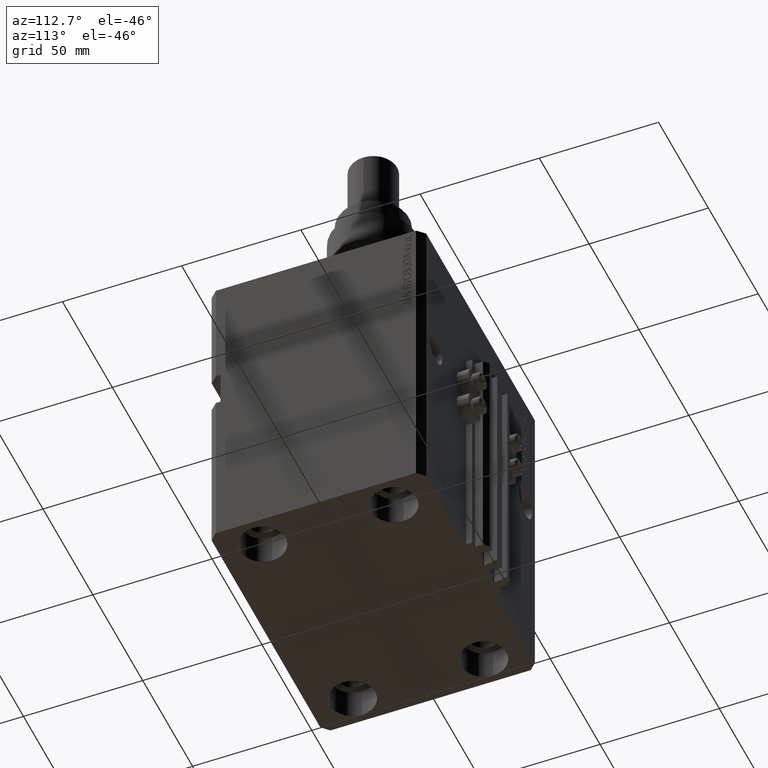
[diagram: clean part render]
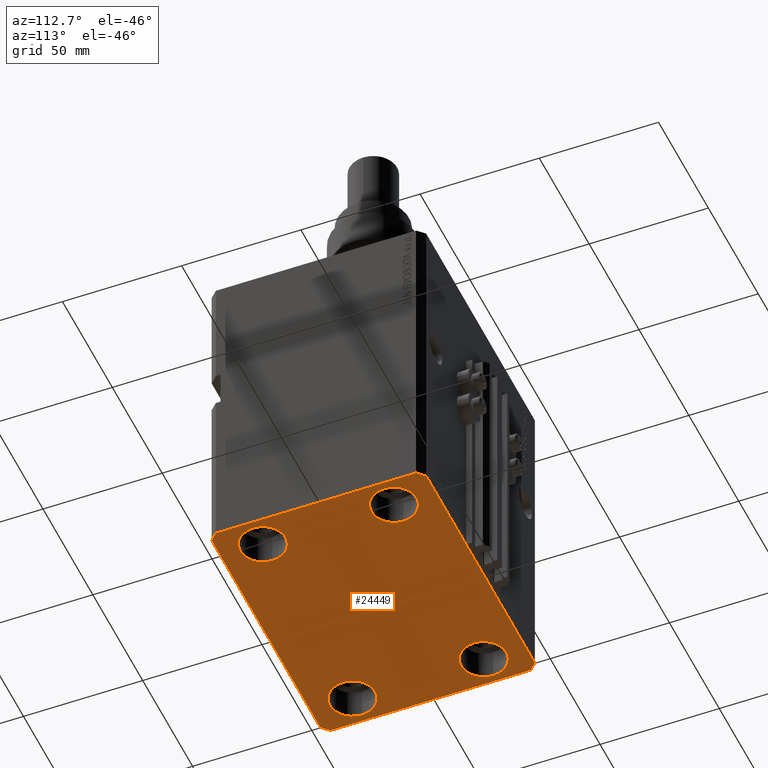
[diagram: same view with one face highlighted and labeled with its STEP entity id]
A machine part, auxiliary view. The second image highlights one B-rep face of the part: STEP entity #24449.
In plain terms, the highlighted planar face has unit normal (0, 0, 1).
Its self-contained STEP definition (entity closure, byte-faithful):
#442 = VECTOR ( 'NONE', #6666, 1000.000000000000000 ) ;
#510 = VERTEX_POINT ( 'NONE', #36924 ) ;
#1359 = EDGE_CURVE ( 'NONE', #10936, #42010, #27413, .T. ) ;
#1474 = LINE ( 'NONE', #33237, #442 ) ;
#1685 = CARTESIAN_POINT ( 'NONE',  ( -54.50000000000000000, 27.50000000000000355, -135.0000000000000000 ) ) ;
#1876 = EDGE_CURVE ( 'NONE', #9649, #47047, #19960, .T. ) ;
#1943 = CARTESIAN_POINT ( 'NONE',  ( -57.50000000000000711, -42.00000000000000711, -135.0000000000000000 ) ) ;
#2590 = DIRECTION ( 'NONE',  ( -2.478176394252581141E-16, -1.000000000000000000, 0.000000000000000000 ) ) ;
#2708 = CARTESIAN_POINT ( 'NONE',  ( -45.00000000000000000, 27.50000000000000355, -135.0000000000000000 ) ) ;
#2760 = VECTOR ( 'NONE', #30728, 1000.000000000000000 ) ;
#2840 = EDGE_CURVE ( 'NONE', #3805, #36762, #47444, .T. ) ;
#3238 = DIRECTION ( 'NONE',  ( 1.000000000000000000, 0.000000000000000000, 0.000000000000000000 ) ) ;
#3805 = VERTEX_POINT ( 'NONE', #13054 ) ;
#4381 = EDGE_CURVE ( 'NONE', #42010, #10936, #36641, .T. ) ;
#4492 = ORIENTED_EDGE ( 'NONE', *, *, #2840, .F. ) ;
#4626 = EDGE_CURVE ( 'NONE', #48419, #27142, #5265, .T. ) ;
#5210 = AXIS2_PLACEMENT_3D ( 'NONE', #36927, #32236, #16614 ) ;
#5265 = LINE ( 'NONE', #8645, #43293 ) ;
#6184 = EDGE_CURVE ( 'NONE', #36762, #50221, #37680, .T. ) ;
#6666 = DIRECTION ( 'NONE',  ( -1.000000000000000000, -2.546383084002639322E-16, 0.000000000000000000 ) ) ;
#7344 = DIRECTION ( 'NONE',  ( 1.000000000000000000, 0.000000000000000000, 0.000000000000000000 ) ) ;
#7657 = AXIS2_PLACEMENT_3D ( 'NONE', #30130, #29883, #25454 ) ;
#8645 = CARTESIAN_POINT ( 'NONE',  ( 57.50000000000055422, 41.99999999999997868, -135.0000000000000000 ) ) ;
#8704 = DIRECTION ( 'NONE',  ( 0.7071067811865491270, -0.7071067811865459074, 0.000000000000000000 ) ) ;
#9224 = EDGE_LOOP ( 'NONE', ( #15646, #21515 ) ) ;
#9649 = VERTEX_POINT ( 'NONE', #29905 ) ;
#10265 = PLANE ( 'NONE',  #45494 ) ;
#10707 = DIRECTION ( 'NONE',  ( 6.443258625056715108E-15, 1.000000000000000000, 0.000000000000000000 ) ) ;
#10871 = EDGE_LOOP ( 'NONE', ( #51460, #44441 ) ) ;
#10936 = VERTEX_POINT ( 'NONE', #40959 ) ;
#12212 = DIRECTION ( 'NONE',  ( 1.000000000000000000, 0.000000000000000000, 0.000000000000000000 ) ) ;
#12429 = EDGE_CURVE ( 'NONE', #50221, #48419, #26840, .T. ) ;
#12623 = CIRCLE ( 'NONE', #7657, 9.500000000000001776 ) ;
#12999 = ORIENTED_EDGE ( 'NONE', *, *, #6184, .F. ) ;
#13054 = CARTESIAN_POINT ( 'NONE',  ( -54.50000000000000711, -45.00000000000000000, -135.0000000000000000 ) ) ;
#13065 = DIRECTION ( 'NONE',  ( -0.7071067811865376918, 0.7071067811865574537, 0.000000000000000000 ) ) ;
#13074 = EDGE_LOOP ( 'NONE', ( #46457, #44835, #21559, #12999, #4492, #39573, #15241, #41885 ) ) ;
#13128 = VERTEX_POINT ( 'NONE', #38299 ) ;
#13701 = CARTESIAN_POINT ( 'NONE',  ( 45.00000000000000000, -27.49999999999999645, -135.0000000000000000 ) ) ;
#13951 = CARTESIAN_POINT ( 'NONE',  ( -45.00000000000000000, -27.49999999999999645, -135.0000000000000000 ) ) ;
#14417 = FACE_OUTER_BOUND ( 'NONE', #13074, .T. ) ;
#14430 = CARTESIAN_POINT ( 'NONE',  ( 54.50000000000000711, -44.99999999999998579, -135.0000000000000000 ) ) ;
#14606 = DIRECTION ( 'NONE',  ( -0.000000000000000000, -0.000000000000000000, 1.000000000000000000 ) ) ;
#14820 = LINE ( 'NONE', #30192, #45536 ) ;
#14989 = VECTOR ( 'NONE', #30534, 1000.000000000000000 ) ;
#15166 = CARTESIAN_POINT ( 'NONE',  ( -54.50000000000000711, -45.00000000000000000, -135.0000000000000000 ) ) ;
#15241 = ORIENTED_EDGE ( 'NONE', *, *, #25914, .F. ) ;
#15423 = CARTESIAN_POINT ( 'NONE',  ( 57.50000000000055422, 41.99999999999997868, -135.0000000000000000 ) ) ;
#15445 = CARTESIAN_POINT ( 'NONE',  ( -54.50000000000000000, -27.49999999999999645, -135.0000000000000000 ) ) ;
#15646 = ORIENTED_EDGE ( 'NONE', *, *, #21130, .T. ) ;
#15702 = EDGE_CURVE ( 'NONE', #47047, #9649, #35273, .T. ) ;
#16614 = DIRECTION ( 'NONE',  ( 1.000000000000000000, 0.000000000000000000, 0.000000000000000000 ) ) ;
#16748 = VECTOR ( 'NONE', #49138, 1000.000000000000000 ) ;
#17336 = DIRECTION ( 'NONE',  ( -0.000000000000000000, -0.000000000000000000, 1.000000000000000000 ) ) ;
#17571 = AXIS2_PLACEMENT_3D ( 'NONE', #34943, #30259, #7344 ) ;
#17988 = CARTESIAN_POINT ( 'NONE',  ( -45.00000000000000000, -27.49999999999999645, -135.0000000000000000 ) ) ;
#18578 = DIRECTION ( 'NONE',  ( 1.000000000000000000, 0.000000000000000000, -0.000000000000000000 ) ) ;
#19960 = CIRCLE ( 'NONE', #44057, 9.500000000000001776 ) ;
#20420 = LINE ( 'NONE', #49042, #47325 ) ;
#21003 = DIRECTION ( 'NONE',  ( 1.000000000000000000, 0.000000000000000000, 0.000000000000000000 ) ) ;
#21100 = VERTEX_POINT ( 'NONE', #1943 ) ;
#21130 = EDGE_CURVE ( 'NONE', #29255, #510, #30417, .T. ) ;
#21515 = ORIENTED_EDGE ( 'NONE', *, *, #42256, .T. ) ;
#21559 = ORIENTED_EDGE ( 'NONE', *, *, #12429, .F. ) ;
#22489 = DIRECTION ( 'NONE',  ( 0.000000000000000000, 0.000000000000000000, 1.000000000000000000 ) ) ;
#22746 = DIRECTION ( 'NONE',  ( -0.000000000000000000, -0.000000000000000000, 1.000000000000000000 ) ) ;
#22862 = CARTESIAN_POINT ( 'NONE',  ( 57.50000000000000711, -41.99999999999998579, -135.0000000000000000 ) ) ;
#24449 = ADVANCED_FACE ( 'NONE', ( #26911, #38885, #42515, #46437, #14417 ), #10265, .F. ) ;
#25073 = CARTESIAN_POINT ( 'NONE',  ( -57.49999999999998579, 42.00000000000000711, -135.0000000000000000 ) ) ;
#25454 = DIRECTION ( 'NONE',  ( 1.000000000000000000, 0.000000000000000000, 0.000000000000000000 ) ) ;
#25914 = EDGE_CURVE ( 'NONE', #43915, #21100, #14820, .T. ) ;
#26474 = ORIENTED_EDGE ( 'NONE', *, *, #1876, .T. ) ;
#26806 = CARTESIAN_POINT ( 'NONE',  ( 54.50000000000000000, -27.49999999999999645, -135.0000000000000000 ) ) ;
#26840 = LINE ( 'NONE', #41936, #42653 ) ;
#26911 = FACE_BOUND ( 'NONE', #44184, .T. ) ;
#27123 = AXIS2_PLACEMENT_3D ( 'NONE', #2708, #50604, #3238 ) ;
#27142 = VERTEX_POINT ( 'NONE', #46263 ) ;
#27413 = CIRCLE ( 'NONE', #37352, 9.500000000000001776 ) ;
#29255 = VERTEX_POINT ( 'NONE', #1685 ) ;
#29874 = CARTESIAN_POINT ( 'NONE',  ( 54.50000000000000711, -44.99999999999998579, -135.0000000000000000 ) ) ;
#29883 = DIRECTION ( 'NONE',  ( -0.000000000000000000, -0.000000000000000000, 1.000000000000000000 ) ) ;
#29905 = CARTESIAN_POINT ( 'NONE',  ( -35.50000000000000000, -27.49999999999999645, -135.0000000000000000 ) ) ;
#29976 = DIRECTION ( 'NONE',  ( 1.000000000000000000, 0.000000000000000000, 0.000000000000000000 ) ) ;
#30003 = AXIS2_PLACEMENT_3D ( 'NONE', #13701, #22746, #21003 ) ;
#30130 = CARTESIAN_POINT ( 'NONE',  ( -45.00000000000000000, 27.50000000000000355, -135.0000000000000000 ) ) ;
#30192 = CARTESIAN_POINT ( 'NONE',  ( -57.49999999999998579, 42.00000000000000711, -135.0000000000000000 ) ) ;
#30259 = DIRECTION ( 'NONE',  ( -0.000000000000000000, -0.000000000000000000, 1.000000000000000000 ) ) ;
#30417 = CIRCLE ( 'NONE', #27123, 9.500000000000001776 ) ;
#30534 = DIRECTION ( 'NONE',  ( 1.000000000000000000, 1.273191542001326317E-16, 0.000000000000000000 ) ) ;
#30728 = DIRECTION ( 'NONE',  ( -0.7071067811865483499, -0.7071067811865466846, 0.000000000000000000 ) ) ;
#31716 = EDGE_CURVE ( 'NONE', #21100, #3805, #20420, .T. ) ;
#32236 = DIRECTION ( 'NONE',  ( -0.000000000000000000, -0.000000000000000000, 1.000000000000000000 ) ) ;
#33237 = CARTESIAN_POINT ( 'NONE',  ( 54.50000000000058975, 45.00000000000002842, -135.0000000000000000 ) ) ;
#33733 = DIRECTION ( 'NONE',  ( 1.000000000000000000, 0.000000000000000000, 0.000000000000000000 ) ) ;
#34633 = LINE ( 'NONE', #41660, #2760 ) ;
#34943 = CARTESIAN_POINT ( 'NONE',  ( 45.00000000000000000, 27.50000000000001776, -135.0000000000000000 ) ) ;
#35273 = CIRCLE ( 'NONE', #42766, 9.500000000000001776 ) ;
#35416 = ORIENTED_EDGE ( 'NONE', *, *, #15702, .T. ) ;
#35665 = VERTEX_POINT ( 'NONE', #49320 ) ;
#35964 = CIRCLE ( 'NONE', #5210, 9.500000000000001776 ) ;
#36641 = CIRCLE ( 'NONE', #30003, 9.500000000000001776 ) ;
#36762 = VERTEX_POINT ( 'NONE', #14430 ) ;
#36924 = CARTESIAN_POINT ( 'NONE',  ( -35.50000000000000000, 27.50000000000000355, -135.0000000000000000 ) ) ;
#36927 = CARTESIAN_POINT ( 'NONE',  ( 45.00000000000000000, 27.50000000000001776, -135.0000000000000000 ) ) ;
#36932 = EDGE_CURVE ( 'NONE', #35665, #13128, #43321, .T. ) ;
#37352 = AXIS2_PLACEMENT_3D ( 'NONE', #47880, #47634, #12212 ) ;
#37680 = LINE ( 'NONE', #29874, #16748 ) ;
#38299 = CARTESIAN_POINT ( 'NONE',  ( 35.50000000000000000, 27.50000000000001776, -135.0000000000000000 ) ) ;
#38461 = EDGE_LOOP ( 'NONE', ( #42025, #49502 ) ) ;
#38885 = FACE_BOUND ( 'NONE', #10871, .T. ) ;
#39573 = ORIENTED_EDGE ( 'NONE', *, *, #31716, .F. ) ;
#40959 = CARTESIAN_POINT ( 'NONE',  ( 35.50000000000000000, -27.49999999999999645, -135.0000000000000000 ) ) ;
#41007 = EDGE_CURVE ( 'NONE', #46026, #43915, #34633, .T. ) ;
#41660 = CARTESIAN_POINT ( 'NONE',  ( -54.49999999999999289, 45.00000000000000000, -135.0000000000000000 ) ) ;
#41885 = ORIENTED_EDGE ( 'NONE', *, *, #41007, .F. ) ;
#41936 = CARTESIAN_POINT ( 'NONE',  ( 57.50000000000000711, -41.99999999999998579, -135.0000000000000000 ) ) ;
#42002 = CARTESIAN_POINT ( 'NONE',  ( 0.000000000000000000, 0.000000000000000000, -135.0000000000000000 ) ) ;
#42010 = VERTEX_POINT ( 'NONE', #26806 ) ;
#42025 = ORIENTED_EDGE ( 'NONE', *, *, #43141, .T. ) ;
#42256 = EDGE_CURVE ( 'NONE', #510, #29255, #12623, .T. ) ;
#42515 = FACE_BOUND ( 'NONE', #38461, .T. ) ;
#42653 = VECTOR ( 'NONE', #10707, 1000.000000000000000 ) ;
#42766 = AXIS2_PLACEMENT_3D ( 'NONE', #17988, #14606, #29976 ) ;
#43141 = EDGE_CURVE ( 'NONE', #13128, #35665, #35964, .T. ) ;
#43293 = VECTOR ( 'NONE', #13065, 999.9999999999998863 ) ;
#43321 = CIRCLE ( 'NONE', #17571, 9.500000000000001776 ) ;
#43915 = VERTEX_POINT ( 'NONE', #25073 ) ;
#44057 = AXIS2_PLACEMENT_3D ( 'NONE', #13951, #17336, #33733 ) ;
#44184 = EDGE_LOOP ( 'NONE', ( #35416, #26474 ) ) ;
#44441 = ORIENTED_EDGE ( 'NONE', *, *, #4381, .T. ) ;
#44835 = ORIENTED_EDGE ( 'NONE', *, *, #4626, .F. ) ;
#45494 = AXIS2_PLACEMENT_3D ( 'NONE', #42002, #22489, #18578 ) ;
#45536 = VECTOR ( 'NONE', #2590, 1000.000000000000000 ) ;
#46026 = VERTEX_POINT ( 'NONE', #46423 ) ;
#46263 = CARTESIAN_POINT ( 'NONE',  ( 54.50000000000058975, 45.00000000000002842, -135.0000000000000000 ) ) ;
#46423 = CARTESIAN_POINT ( 'NONE',  ( -54.49999999999999289, 45.00000000000000000, -135.0000000000000000 ) ) ;
#46437 = FACE_BOUND ( 'NONE', #9224, .T. ) ;
#46457 = ORIENTED_EDGE ( 'NONE', *, *, #46612, .F. ) ;
#46612 = EDGE_CURVE ( 'NONE', #27142, #46026, #1474, .T. ) ;
#47047 = VERTEX_POINT ( 'NONE', #15445 ) ;
#47325 = VECTOR ( 'NONE', #8704, 1000.000000000000114 ) ;
#47444 = LINE ( 'NONE', #15166, #14989 ) ;
#47634 = DIRECTION ( 'NONE',  ( -0.000000000000000000, -0.000000000000000000, 1.000000000000000000 ) ) ;
#47880 = CARTESIAN_POINT ( 'NONE',  ( 45.00000000000000000, -27.49999999999999645, -135.0000000000000000 ) ) ;
#48419 = VERTEX_POINT ( 'NONE', #15423 ) ;
#49042 = CARTESIAN_POINT ( 'NONE',  ( -57.50000000000000711, -42.00000000000000711, -135.0000000000000000 ) ) ;
#49138 = DIRECTION ( 'NONE',  ( 0.7071067811865483499, 0.7071067811865466846, 0.000000000000000000 ) ) ;
#49320 = CARTESIAN_POINT ( 'NONE',  ( 54.50000000000000000, 27.50000000000001776, -135.0000000000000000 ) ) ;
#49502 = ORIENTED_EDGE ( 'NONE', *, *, #36932, .T. ) ;
#50221 = VERTEX_POINT ( 'NONE', #22862 ) ;
#50604 = DIRECTION ( 'NONE',  ( -0.000000000000000000, -0.000000000000000000, 1.000000000000000000 ) ) ;
#51460 = ORIENTED_EDGE ( 'NONE', *, *, #1359, .T. ) ;